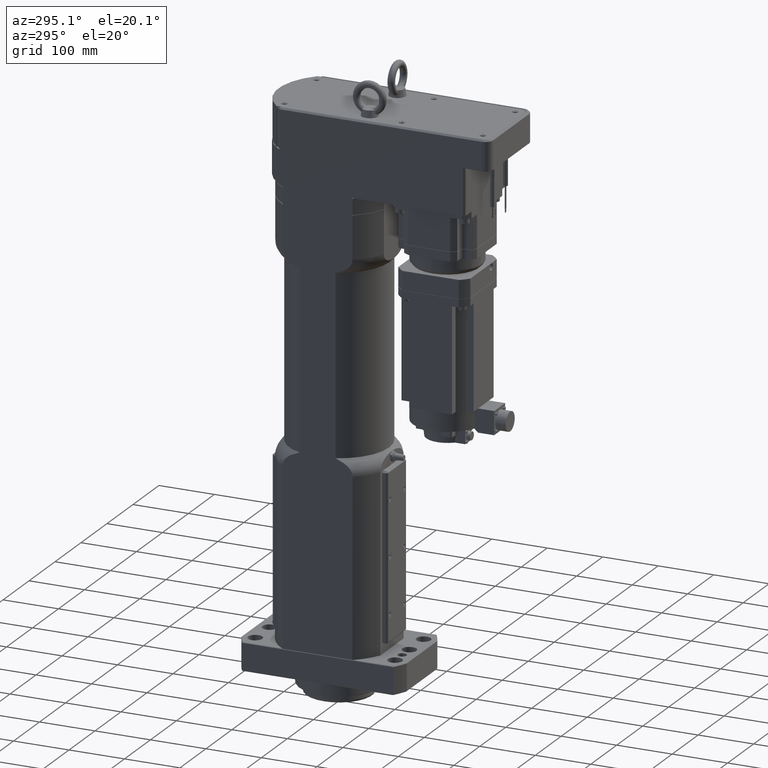
[diagram: clean part render]
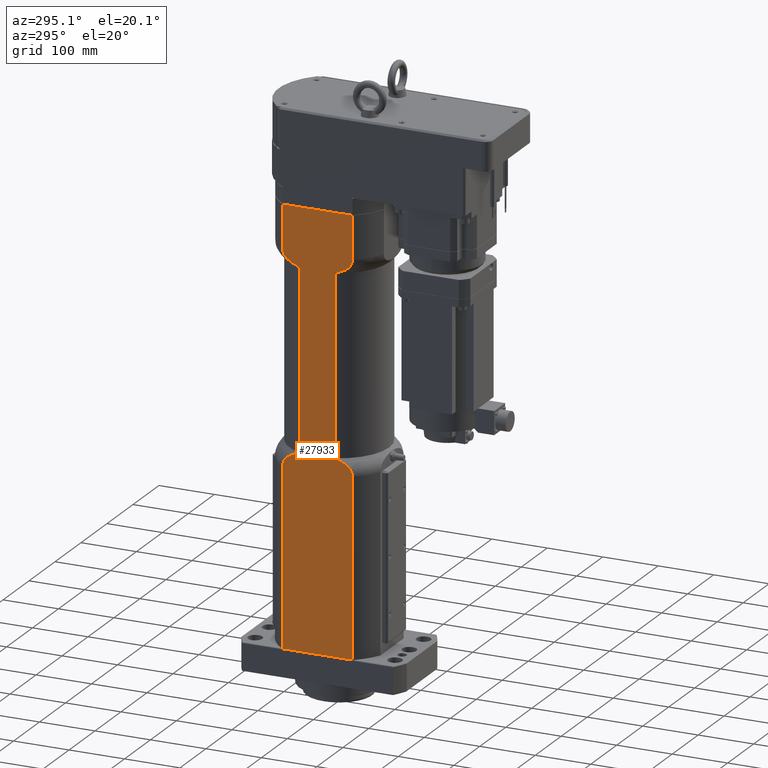
[diagram: same view with one face highlighted and labeled with its STEP entity id]
A machine part, auxiliary view. The second image highlights one B-rep face of the part: STEP entity #27933.
In plain terms, the highlighted planar face has unit normal (1, -0, -0).
Its self-contained STEP definition (entity closure, byte-faithful):
#298=B_SPLINE_CURVE_WITH_KNOTS('',3,(#46125,#46126,#46127,#46128,#46129,
#46130,#46131,#46132,#46133,#46134,#46135,#46136,#46137,#46138),
 .UNSPECIFIED.,.F.,.F.,(4,2,2,2,2,2,4),(4.53845927153319,4.98585092527965,
5.61009378483915,6.03798101936527,6.4658682538914,6.82294696748802,7.18002568108465),
 .UNSPECIFIED.);
#308=B_SPLINE_CURVE_WITH_KNOTS('',3,(#46379,#46380,#46381,#46382,#46383,
#46384,#46385,#46386,#46387,#46388,#46389,#46390,#46391,#46392),
 .UNSPECIFIED.,.F.,.F.,(4,2,2,2,2,2,4),(21.5400770432539,21.8971557568506,
22.2542344704472,22.6821217049733,23.1100089394994,23.7342517990589,24.1816434528054),
 .UNSPECIFIED.);
#313=B_SPLINE_CURVE_WITH_KNOTS('',3,(#46512,#46513,#46514,#46515,#46516,
#46517,#46518,#46519,#46520,#46521,#46522,#46523,#46524,#46525),
 .UNSPECIFIED.,.F.,.F.,(4,2,2,2,2,2,4),(4.53845927153318,4.98585092527966,
5.61009378483915,6.03798101936527,6.4658682538914,6.82294696748802,7.18002568108465),
 .UNSPECIFIED.);
#314=B_SPLINE_CURVE_WITH_KNOTS('',3,(#46528,#46529,#46530,#46531,#46532,
#46533,#46534,#46535,#46536,#46537,#46538,#46539,#46540,#46541),
 .UNSPECIFIED.,.F.,.F.,(4,2,2,2,2,2,4),(21.5400770432539,21.8971557568506,
22.2542344704472,22.6821217049733,23.1100089394994,23.7342517990589,24.1816434528054),
 .UNSPECIFIED.);
#856=(
BOUNDED_CURVE()
B_SPLINE_CURVE(2,(#46368,#46369,#46370),.UNSPECIFIED.,.F.,.F.)
B_SPLINE_CURVE_WITH_KNOTS((3,3),(0.,1.69346921666499),.UNSPECIFIED.)
CURVE()
GEOMETRIC_REPRESENTATION_ITEM()
RATIONAL_B_SPLINE_CURVE((1.,1.00624867840932,1.00630894568082))
REPRESENTATION_ITEM('')
);
#859=(
BOUNDED_CURVE()
B_SPLINE_CURVE(2,(#46415,#46416,#46417),.UNSPECIFIED.,.F.,.F.)
B_SPLINE_CURVE_WITH_KNOTS((3,3),(1.72645369903925,3.41992291570423),
 .UNSPECIFIED.)
CURVE()
GEOMETRIC_REPRESENTATION_ITEM()
RATIONAL_B_SPLINE_CURVE((1.00630894568082,1.00624867840933,1.))
REPRESENTATION_ITEM('')
);
#862=(
BOUNDED_CURVE()
B_SPLINE_CURVE(2,(#46548,#46549,#46550),.UNSPECIFIED.,.F.,.F.)
B_SPLINE_CURVE_WITH_KNOTS((3,3),(1.72645369903924,3.41992291570423),
 .UNSPECIFIED.)
CURVE()
GEOMETRIC_REPRESENTATION_ITEM()
RATIONAL_B_SPLINE_CURVE((1.0063089456809,1.00624867840941,1.))
REPRESENTATION_ITEM('')
);
#863=(
BOUNDED_CURVE()
B_SPLINE_CURVE(2,(#46552,#46553,#46554),.UNSPECIFIED.,.F.,.F.)
B_SPLINE_CURVE_WITH_KNOTS((3,3),(0.,1.69346921666498),.UNSPECIFIED.)
CURVE()
GEOMETRIC_REPRESENTATION_ITEM()
RATIONAL_B_SPLINE_CURVE((1.,1.00624867840939,1.00630894568089))
REPRESENTATION_ITEM('')
);
#1319=LINE('',#40051,#2938);
#2020=LINE('',#45655,#3639);
#2117=LINE('',#45979,#3736);
#2119=LINE('',#45989,#3738);
#2164=LINE('',#46358,#3783);
#2166=LINE('',#46422,#3785);
#2172=LINE('',#46473,#3791);
#2177=LINE('',#46484,#3796);
#2181=LINE('',#46545,#3800);
#2182=LINE('',#46557,#3801);
#2938=VECTOR('',#32202,10.);
#3639=VECTOR('',#35547,10.);
#3736=VECTOR('',#35872,10.);
#3738=VECTOR('',#35882,10.);
#3783=VECTOR('',#35999,10.);
#3785=VECTOR('',#36029,10.);
#3791=VECTOR('',#36047,10.);
#3796=VECTOR('',#36062,10.);
#3800=VECTOR('',#36076,10.);
#3801=VECTOR('',#36087,10.);
#6274=FACE_OUTER_BOUND('',#8183,.T.);
#8183=EDGE_LOOP('',(#20936,#20937,#20938,#20939,#20940,#20941,#20942,#20943,
#20944,#20945,#20946,#20947,#20948,#20949,#20950,#20951,#20952,#20953));
#10733=VERTEX_POINT('',#40048);
#10734=VERTEX_POINT('',#40050);
#11953=VERTEX_POINT('',#45652);
#11954=VERTEX_POINT('',#45654);
#12060=VERTEX_POINT('',#45976);
#12061=VERTEX_POINT('',#45978);
#12063=VERTEX_POINT('',#45983);
#12065=VERTEX_POINT('',#45987);
#12092=VERTEX_POINT('',#46122);
#12093=VERTEX_POINT('',#46124);
#12117=VERTEX_POINT('',#46357);
#12119=VERTEX_POINT('',#46365);
#12120=VERTEX_POINT('',#46367);
#12124=VERTEX_POINT('',#46414);
#12125=VERTEX_POINT('',#46420);
#12132=VERTEX_POINT('',#46472);
#12136=VERTEX_POINT('',#46527);
#12137=VERTEX_POINT('',#46544);
#13307=EDGE_CURVE('',#10734,#10733,#1319,.T.);
#15075=EDGE_CURVE('',#11953,#11954,#2020,.T.);
#15233=EDGE_CURVE('',#12060,#12061,#2117,.T.);
#15238=EDGE_CURVE('',#12065,#12063,#2119,.T.);
#15276=EDGE_CURVE('',#12092,#12093,#298,.T.);
#15312=EDGE_CURVE('',#11954,#12117,#2164,.T.);
#15317=EDGE_CURVE('',#12120,#12119,#856,.T.);
#15321=EDGE_CURVE('',#12117,#12119,#308,.T.);
#15325=EDGE_CURVE('',#12124,#10734,#859,.T.);
#15328=EDGE_CURVE('',#12125,#11953,#2166,.T.);
#15338=EDGE_CURVE('',#12061,#12132,#2172,.T.);
#15345=EDGE_CURVE('',#12093,#12065,#2177,.T.);
#15352=EDGE_CURVE('',#12124,#12125,#313,.T.);
#15353=EDGE_CURVE('',#12132,#12136,#314,.T.);
#15355=EDGE_CURVE('',#12137,#12120,#2181,.T.);
#15357=EDGE_CURVE('',#12092,#12137,#862,.T.);
#15358=EDGE_CURVE('',#10733,#12136,#863,.T.);
#15359=EDGE_CURVE('',#12060,#12063,#2182,.T.);
#20936=ORIENTED_EDGE('',*,*,#15321,.F.);
#20937=ORIENTED_EDGE('',*,*,#15312,.F.);
#20938=ORIENTED_EDGE('',*,*,#15075,.F.);
#20939=ORIENTED_EDGE('',*,*,#15328,.F.);
#20940=ORIENTED_EDGE('',*,*,#15352,.F.);
#20941=ORIENTED_EDGE('',*,*,#15325,.T.);
#20942=ORIENTED_EDGE('',*,*,#13307,.T.);
#20943=ORIENTED_EDGE('',*,*,#15358,.T.);
#20944=ORIENTED_EDGE('',*,*,#15353,.F.);
#20945=ORIENTED_EDGE('',*,*,#15338,.F.);
#20946=ORIENTED_EDGE('',*,*,#15233,.F.);
#20947=ORIENTED_EDGE('',*,*,#15359,.T.);
#20948=ORIENTED_EDGE('',*,*,#15238,.F.);
#20949=ORIENTED_EDGE('',*,*,#15345,.F.);
#20950=ORIENTED_EDGE('',*,*,#15276,.F.);
#20951=ORIENTED_EDGE('',*,*,#15357,.T.);
#20952=ORIENTED_EDGE('',*,*,#15355,.T.);
#20953=ORIENTED_EDGE('',*,*,#15317,.T.);
#24981=PLANE('',#30519);
#27933=ADVANCED_FACE('',(#6274),#24981,.F.);
#30519=AXIS2_PLACEMENT_3D('',#46556,#36085,#36086);
#32202=DIRECTION('',(1.55993471463611E-15,6.00545913593838E-31,1.));
#35547=DIRECTION('',(6.70539461698234E-16,1.,-1.64654369743033E-30));
#35872=DIRECTION('',(-6.70539461698234E-16,-1.,1.64654369743033E-30));
#35882=DIRECTION('',(-6.70539461698234E-16,-1.,1.64654369743033E-30));
#35999=DIRECTION('',(1.55993471463611E-15,6.00545913593838E-31,1.));
#36029=DIRECTION('',(-1.55993471463611E-15,-6.00545913593838E-31,-1.));
#36047=DIRECTION('',(-1.55993471463611E-15,-6.00545913593838E-31,-1.));
#36062=DIRECTION('',(1.55993471463611E-15,6.00545913593838E-31,1.));
#36076=DIRECTION('',(-1.55993471463611E-15,-6.00545913593838E-31,-1.));
#36085=DIRECTION('center_axis',(1.,-6.70539461698234E-16,-1.55993471463611E-15));
#36086=DIRECTION('ref_axis',(0.,-1.,0.));
#36087=DIRECTION('',(-2.22044604925031E-16,1.,-3.08148791101958E-31));
#40048=CARTESIAN_POINT('',(-84.0000000000005,-32.310988842807,717.999999999958));
#40050=CARTESIAN_POINT('',(-84.000000000001,-32.310988842807,395.999999999958));
#40051=CARTESIAN_POINT('',(-84.0000000000008,-32.310988842807,556.999999999958));
#45652=CARTESIAN_POINT('',(-84.0000000000016,-62.9999999999999,49.9999999999581));
#45654=CARTESIAN_POINT('',(-84.0000000000015,63.0000000000001,49.9999999999581));
#45655=CARTESIAN_POINT('',(-84.0000000000015,31.5000000000001,49.9999999999581));
#45976=CARTESIAN_POINT('',(-84.0000000000003,-61.3188388670236,822.999999999958));
#45978=CARTESIAN_POINT('',(-84.0000000000004,-62.9999999999999,822.999999999958));
#45979=CARTESIAN_POINT('',(-84.0000000000003,31.5000000000001,822.999999999958));
#45983=CARTESIAN_POINT('',(-84.0000000000003,61.3188388670236,822.999999999958));
#45987=CARTESIAN_POINT('',(-84.0000000000003,63.0000000000001,822.999999999958));
#45989=CARTESIAN_POINT('',(-84.0000000000003,31.5000000000001,822.999999999958));
#46122=CARTESIAN_POINT('',(-84.0000000000004,46.914608762511,724.213203435555));
#46124=CARTESIAN_POINT('',(-84.0000000000004,63.0000000000001,745.426406871151));
#46125=CARTESIAN_POINT('Ctrl Pts',(-84.0000000000005,46.9146087625109,724.213203435555));
#46126=CARTESIAN_POINT('Ctrl Pts',(-84.0000000000005,48.3171907198985,724.897117715909));
#46127=CARTESIAN_POINT('Ctrl Pts',(-84.0000000000005,49.747943158474,725.686654137437));
#46128=CARTESIAN_POINT('Ctrl Pts',(-84.0000000000005,53.0273801321085,727.795674964655));
#46129=CARTESIAN_POINT('Ctrl Pts',(-84.0000000000004,54.8132478493803,729.208984430906));
#46130=CARTESIAN_POINT('Ctrl Pts',(-84.0000000000004,57.3113249039263,731.670561900606));
#46131=CARTESIAN_POINT('Ctrl Pts',(-84.0000000000005,58.3425257802119,732.84919448379));
#46132=CARTESIAN_POINT('Ctrl Pts',(-84.0000000000005,60.1366782268262,735.3904774932));
#46133=CARTESIAN_POINT('Ctrl Pts',(-84.0000000000005,60.8975148556872,736.754620414464));
#46134=CARTESIAN_POINT('Ctrl Pts',(-84.0000000000005,61.928340220183,739.159563139179));
#46135=CARTESIAN_POINT('Ctrl Pts',(-84.0000000000004,62.3373077338405,740.399613409365));
#46136=CARTESIAN_POINT('Ctrl Pts',(-84.0000000000004,62.8735478112806,742.937817461343));
#46137=CARTESIAN_POINT('Ctrl Pts',(-84.0000000000004,63.,744.236144492496));
#46138=CARTESIAN_POINT('Ctrl Pts',(-84.0000000000004,63.,745.426406871151));
#46357=CARTESIAN_POINT('',(-84.000000000001,63.0000000000001,368.573593128765));
#46358=CARTESIAN_POINT('',(-84.0000000000003,63.0000000000001,822.999999999958));
#46365=CARTESIAN_POINT('',(-84.000000000001,46.914608762511,389.786796564362));
#46367=CARTESIAN_POINT('',(-84.000000000001,32.3109888428071,395.999999999958));
#46368=CARTESIAN_POINT('Ctrl Pts',(-84.000000000001,32.3109888428071,395.999999999958));
#46369=CARTESIAN_POINT('Ctrl Pts',(-84.000000000001,39.3691660747337,393.466036824499));
#46370=CARTESIAN_POINT('Ctrl Pts',(-84.000000000001,46.914608762511,389.786796564362));
#46379=CARTESIAN_POINT('Ctrl Pts',(-84.000000000001,63.,368.573593128765));
#46380=CARTESIAN_POINT('Ctrl Pts',(-84.000000000001,63.,369.763855507421));
#46381=CARTESIAN_POINT('Ctrl Pts',(-84.000000000001,62.8735478112806,371.062182538574));
#46382=CARTESIAN_POINT('Ctrl Pts',(-84.000000000001,62.3373077338405,373.600386590552));
#46383=CARTESIAN_POINT('Ctrl Pts',(-84.000000000001,61.928340220183,374.840436860738));
#46384=CARTESIAN_POINT('Ctrl Pts',(-84.000000000001,60.8975148556872,377.245379585453));
#46385=CARTESIAN_POINT('Ctrl Pts',(-84.000000000001,60.1366782268262,378.609522506716));
#46386=CARTESIAN_POINT('Ctrl Pts',(-84.000000000001,58.3425257802119,381.150805516127));
#46387=CARTESIAN_POINT('Ctrl Pts',(-84.000000000001,57.3113249039263,382.32943809931));
#46388=CARTESIAN_POINT('Ctrl Pts',(-84.000000000001,54.8132478493803,384.79101556901));
#46389=CARTESIAN_POINT('Ctrl Pts',(-84.000000000001,53.0273801321085,386.204325035262));
#46390=CARTESIAN_POINT('Ctrl Pts',(-84.000000000001,49.747943158474,388.313345862479));
#46391=CARTESIAN_POINT('Ctrl Pts',(-84.000000000001,48.3171907198986,389.102882284008));
#46392=CARTESIAN_POINT('Ctrl Pts',(-84.000000000001,46.914608762511,389.786796564362));
#46414=CARTESIAN_POINT('',(-84.0000000000011,-46.9146087625107,389.786796564362));
#46415=CARTESIAN_POINT('Ctrl Pts',(-84.0000000000011,-46.9146087625107,
389.786796564362));
#46416=CARTESIAN_POINT('Ctrl Pts',(-84.0000000000011,-39.3691660747335,
393.466036824499));
#46417=CARTESIAN_POINT('Ctrl Pts',(-84.000000000001,-32.3109888428069,395.999999999958));
#46420=CARTESIAN_POINT('',(-84.0000000000011,-62.9999999999999,368.573593128765));
#46422=CARTESIAN_POINT('',(-84.0000000000004,-62.9999999999999,822.999999999958));
#46472=CARTESIAN_POINT('',(-84.0000000000005,-62.9999999999999,745.426406871151));
#46473=CARTESIAN_POINT('',(-84.0000000000004,-62.9999999999999,822.999999999958));
#46484=CARTESIAN_POINT('',(-84.0000000000003,63.0000000000001,822.999999999958));
#46512=CARTESIAN_POINT('Ctrl Pts',(-84.0000000000011,-46.9146087625107,
389.786796564362));
#46513=CARTESIAN_POINT('Ctrl Pts',(-84.0000000000011,-48.3171907198983,
389.102882284008));
#46514=CARTESIAN_POINT('Ctrl Pts',(-84.000000000001,-49.7479431584738,388.313345862479));
#46515=CARTESIAN_POINT('Ctrl Pts',(-84.0000000000011,-53.0273801321084,
386.204325035262));
#46516=CARTESIAN_POINT('Ctrl Pts',(-84.0000000000011,-54.8132478493801,
384.79101556901));
#46517=CARTESIAN_POINT('Ctrl Pts',(-84.0000000000011,-57.3113249039262,
382.32943809931));
#46518=CARTESIAN_POINT('Ctrl Pts',(-84.0000000000011,-58.3425257802118,
381.150805516126));
#46519=CARTESIAN_POINT('Ctrl Pts',(-84.0000000000011,-60.1366782268261,
378.609522506716));
#46520=CARTESIAN_POINT('Ctrl Pts',(-84.0000000000011,-60.897514855687,377.245379585453));
#46521=CARTESIAN_POINT('Ctrl Pts',(-84.0000000000011,-61.9283402201828,
374.840436860738));
#46522=CARTESIAN_POINT('Ctrl Pts',(-84.0000000000011,-62.3373077338404,
373.600386590552));
#46523=CARTESIAN_POINT('Ctrl Pts',(-84.0000000000011,-62.8735478112805,
371.062182538574));
#46524=CARTESIAN_POINT('Ctrl Pts',(-84.0000000000011,-62.9999999999999,
369.763855507421));
#46525=CARTESIAN_POINT('Ctrl Pts',(-84.0000000000011,-62.9999999999999,
368.573593128765));
#46527=CARTESIAN_POINT('',(-84.0000000000005,-46.9146087625108,724.213203435555));
#46528=CARTESIAN_POINT('Ctrl Pts',(-84.0000000000005,-62.9999999999999,
745.426406871151));
#46529=CARTESIAN_POINT('Ctrl Pts',(-84.0000000000005,-62.9999999999999,
744.236144492496));
#46530=CARTESIAN_POINT('Ctrl Pts',(-84.0000000000005,-62.8735478112805,
742.937817461343));
#46531=CARTESIAN_POINT('Ctrl Pts',(-84.0000000000005,-62.3373077338404,
740.399613409365));
#46532=CARTESIAN_POINT('Ctrl Pts',(-84.0000000000005,-61.9283402201828,
739.159563139179));
#46533=CARTESIAN_POINT('Ctrl Pts',(-84.0000000000005,-60.897514855687,736.754620414464));
#46534=CARTESIAN_POINT('Ctrl Pts',(-84.0000000000005,-60.1366782268261,
735.3904774932));
#46535=CARTESIAN_POINT('Ctrl Pts',(-84.0000000000005,-58.3425257802118,
732.84919448379));
#46536=CARTESIAN_POINT('Ctrl Pts',(-84.0000000000005,-57.3113249039262,
731.670561900606));
#46537=CARTESIAN_POINT('Ctrl Pts',(-84.0000000000005,-54.8132478493802,
729.208984430906));
#46538=CARTESIAN_POINT('Ctrl Pts',(-84.0000000000005,-53.0273801321084,
727.795674964655));
#46539=CARTESIAN_POINT('Ctrl Pts',(-84.0000000000005,-49.7479431584739,
725.686654137437));
#46540=CARTESIAN_POINT('Ctrl Pts',(-84.0000000000005,-48.3171907198984,
724.897117715909));
#46541=CARTESIAN_POINT('Ctrl Pts',(-84.0000000000005,-46.9146087625108,
724.213203435555));
#46544=CARTESIAN_POINT('',(-84.0000000000005,32.3109888428071,717.999999999958));
#46545=CARTESIAN_POINT('',(-84.0000000000007,32.3109888428071,556.999999999958));
#46548=CARTESIAN_POINT('Ctrl Pts',(-84.0000000000004,46.914608762511,724.213203435555));
#46549=CARTESIAN_POINT('Ctrl Pts',(-84.0000000000004,39.3691660747343,720.533963175418));
#46550=CARTESIAN_POINT('Ctrl Pts',(-84.0000000000005,32.310988842807,717.999999999958));
#46552=CARTESIAN_POINT('Ctrl Pts',(-84.0000000000005,-32.3109888428069,
717.999999999958));
#46553=CARTESIAN_POINT('Ctrl Pts',(-84.0000000000005,-39.3691660747341,
720.533963175418));
#46554=CARTESIAN_POINT('Ctrl Pts',(-84.0000000000005,-46.9146087625108,
724.213203435555));
#46556=CARTESIAN_POINT('Origin',(-84.0000000000003,63.0000000000001,822.999999999958));
#46557=CARTESIAN_POINT('',(-84.0000000000003,-63.,822.999999999958));